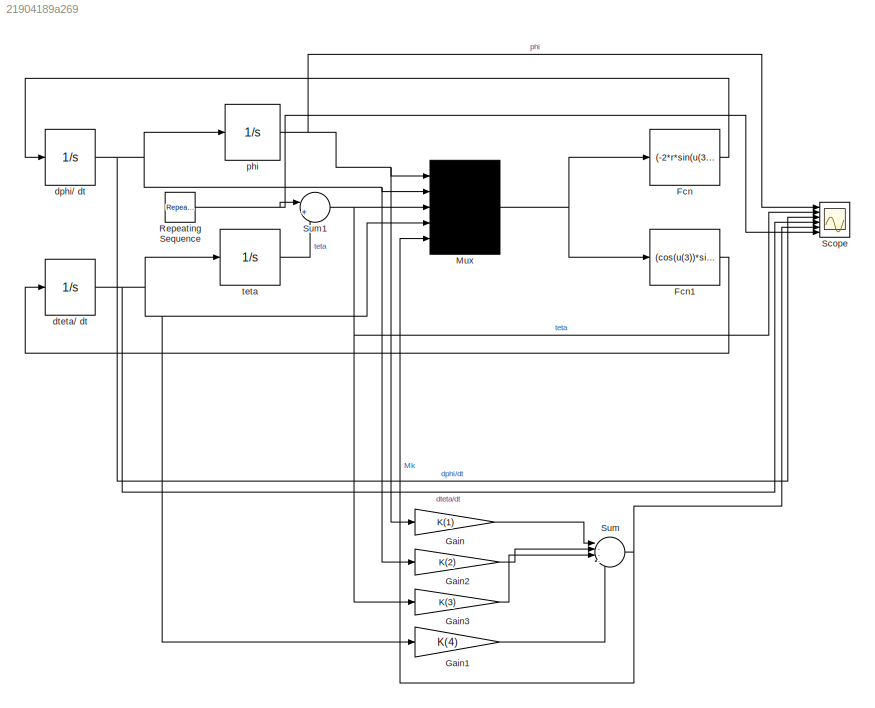
MODEL slx_21904189a269
KIND model
CONFIG AbsTol = auto
CONFIG FixedStep = auto
CONFIG MaxStep = auto
CONFIG MinStep = auto
CONFIG RelTol = 1e-3
CONFIG SampleTimeConstraint = Unconstrained
CONFIG Solver = ode45
CONFIG SolverMode = Auto
CONFIG SolverName = ode45
CONFIG StartTime = 0.0
CONFIG StopTime = 10
BLOCK [Fcn] Fcn
  Expr = (-2*r*sin(u(3))*u(4)^2*l*mp+cos(u(3))*mp*g*sin(u(3))*r-2*u(5))/(r^2*(cos(u(3))^2*mp-2*mp-4*mw))
BLOCK [Fcn] Fcn1
  Expr = (cos(u(3))*sin(u(3))*u(4)^2*l*mp*r-g*sin(u(3))*r*mp-2*g*sin(u(3))*r*mw+cos(u(3))*u(5))/(r*l*(cos(u(3))^2*mp-2*mp-4*mw))
BLOCK [Gain] Gain
  Gain = K(1)
  OutDataTypeStr = Inherit: Inherit via internal rule
  ParamDataTypeStr = Inherit: Inherit via internal rule
  SaturateOnIntegerOverflow = off
BLOCK [Gain] Gain1
  Gain = K(4)
  OutDataTypeStr = Inherit: Inherit via internal rule
  ParamDataTypeStr = Inherit: Inherit via internal rule
  SaturateOnIntegerOverflow = off
BLOCK [Gain] Gain2
  Gain = K(2)
  OutDataTypeStr = Inherit: Inherit via internal rule
  ParamDataTypeStr = Inherit: Inherit via internal rule
  SaturateOnIntegerOverflow = off
BLOCK [Gain] Gain3
  Gain = K(3)
  OutDataTypeStr = Inherit: Inherit via internal rule
  ParamDataTypeStr = Inherit: Inherit via internal rule
  SaturateOnIntegerOverflow = off
BLOCK [Mux] Mux
  DisplayOption = signals
  Inputs = 5
  Ports = [5, 1]
BLOCK [Reference] Repeating Sequence  REF=simulink/Sources/Repeating
Sequence
  Ports = [0, 1]
  SourceBlock = simulink/Sources/Repeating\nSequence
  SourceType = Repeating table
BLOCK [Scope] Scope
  NumInputPorts = 6
  Ports = [6]
  ScopeSpecificationString = Simulink.scopes.TimeScopeBlockCfg('CurrentConfiguration', extmgr.ConfigurationSet(extmgr.Configuration('Core','General UI',true),extmgr.Configuration('Core','Source UI',true),extmgr.Configuration('Sources','WiredSimulink',true,'DataLoggingSaveFormat','StructureWithTime','DataLoggingMaxPoints','1000000000','DataLoggingLimitDataPoints',true,'DataLoggingDecimation','1','DataLoggingDecimateData',true)...<+6376ch>
BLOCK [Sum] Sum
  IconShape = round
  InputSameDT = off
  Inputs = |----
  OutDataTypeStr = Inherit: Inherit via internal rule
  Ports = [4, 1]
  SaturateOnIntegerOverflow = off
BLOCK [Sum] Sum1
  IconShape = round
  InputSameDT = off
  Inputs = |++
  OutDataTypeStr = Inherit: Inherit via internal rule
  Ports = [2, 1]
  SaturateOnIntegerOverflow = off
BLOCK [Integrator] dphi// dt
  Ports = [1, 1]
BLOCK [Integrator] dteta// dt
  Ports = [1, 1]
BLOCK [Integrator] phi
  Ports = [1, 1]
BLOCK [Integrator] teta
  Ports = [1, 1]
LINE Fcn1:1 -> dteta// dt:1
LINE Fcn:1 -> dphi// dt:1
LINE Gain1:1 -> Sum:4
LINE Gain2:1 -> Sum:2
LINE Gain3:1 -> Sum:3
LINE Gain:1 -> Sum:1
NET Mux:1 -> Fcn1:1, Fcn:1
NET Repeating Sequence:1 -> Scope:6, Sum1:1
NET Sum1:1 -> Gain3:1, Mux:3, Scope:2
NET Sum:1 -> Mux:5, Scope:5
NET dphi// dt:1 -> Gain2:1, Mux:2, Scope:3, phi:1
NET dteta// dt:1 -> Gain1:1, Mux:4, Scope:4, teta:1
NET phi:1 -> Gain:1, Mux:1, Scope:1
LINE teta:1 -> Sum1:2
note: NET lines group one-source signal fan-out (src -> all destinations, sorted); 1:1 wires keep LINE
